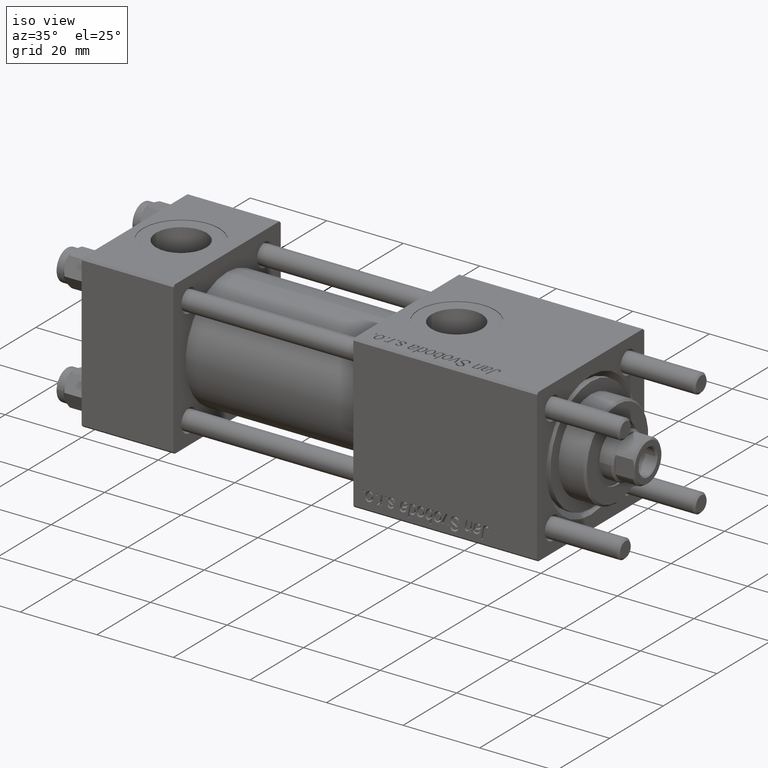
[diagram: clean part render]
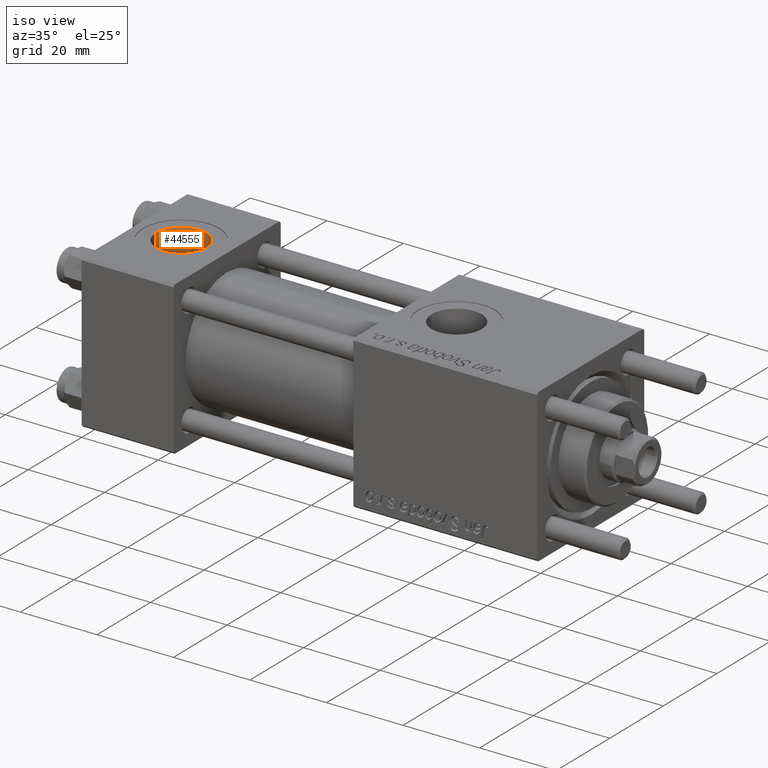
[diagram: same view with one face highlighted and labeled with its STEP entity id]
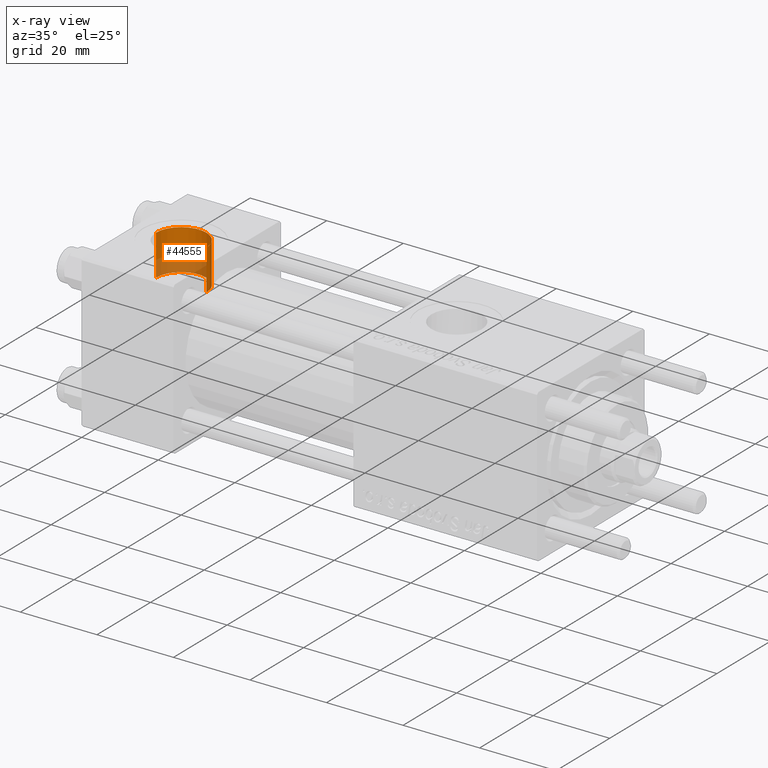
[diagram: x-ray of the same camera — body ghosted, the highlighted face saturated]
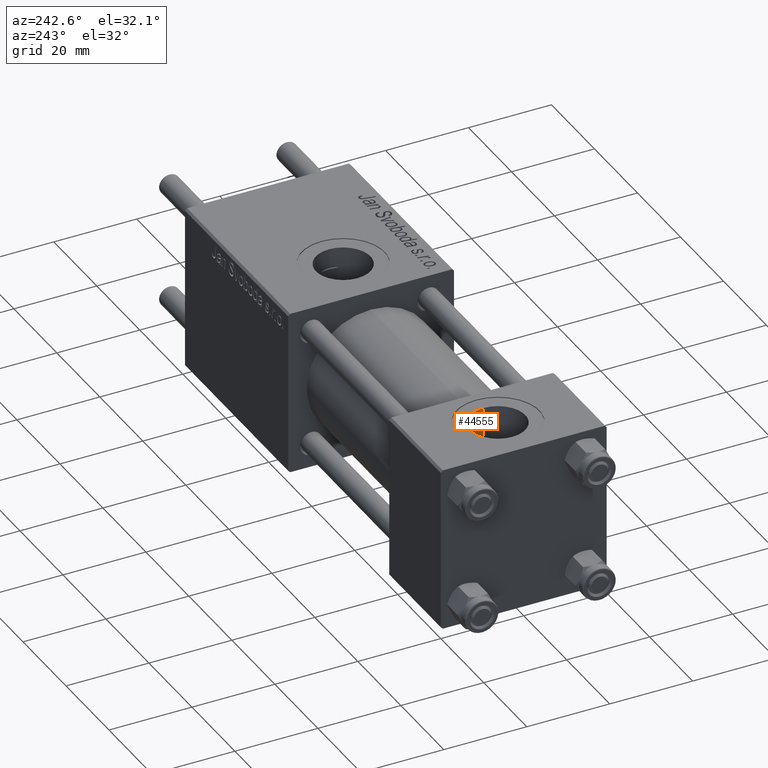
[diagram: same view with one face highlighted and labeled with its STEP entity id]
A machine part, iso view. The second image highlights one B-rep face of the part: STEP entity #44555.
The next image is the same camera in x-ray: the body ghosted, the highlighted face saturated — about 34% of this face is hidden behind the body in this view.
A second angle (auxiliary view) of the same face is appended — the face is thin or edge-on in the first view.
In plain terms, the highlighted cylindrical surface (edge-blend (fillet) strip) has radius 6.58 mm, axis along (0, 0, 1).
Its self-contained STEP definition (entity closure, byte-faithful):
#1028 = AXIS2_PLACEMENT_3D ( 'NONE', #52644, #31447, #31721 ) ;
#2093 = VECTOR ( 'NONE', #14751, 1000.000000000000000 ) ;
#5621 = VERTEX_POINT ( 'NONE', #39962 ) ;
#6402 = ORIENTED_EDGE ( 'NONE', *, *, #12890, .T. ) ;
#6999 = EDGE_CURVE ( 'NONE', #43525, #35718, #35832, .T. ) ;
#7567 = VECTOR ( 'NONE', #41560, 1000.000000000000000 ) ;
#8988 = DIRECTION ( 'NONE',  ( -0.000000000000000000, -0.000000000000000000, 1.000000000000000000 ) ) ;
#10835 = ORIENTED_EDGE ( 'NONE', *, *, #6999, .T. ) ;
#11326 = CARTESIAN_POINT ( 'NONE',  ( 18.57999999999999829, 1.540743955509788682E-30, 19.79999999999999716 ) ) ;
#12890 = EDGE_CURVE ( 'NONE', #35718, #15567, #20344, .T. ) ;
#14153 = DIRECTION ( 'NONE',  ( 1.000000000000000000, 0.000000000000000000, 0.000000000000000000 ) ) ;
#14626 = EDGE_CURVE ( 'NONE', #15567, #5621, #48669, .T. ) ;
#14751 = DIRECTION ( 'NONE',  ( -0.000000000000000000, -0.000000000000000000, 1.000000000000000000 ) ) ;
#15567 = VERTEX_POINT ( 'NONE', #11326 ) ;
#16789 = ORIENTED_EDGE ( 'NONE', *, *, #18930, .F. ) ;
#18930 = EDGE_CURVE ( 'NONE', #43525, #5621, #27115, .T. ) ;
#19054 = CARTESIAN_POINT ( 'NONE',  ( 5.420000000000000817, 8.058175938389596335E-16, 9.199999999999995737 ) ) ;
#19193 = CARTESIAN_POINT ( 'NONE',  ( 18.57999999999999829, 1.540743955509788682E-30, 9.165987261146492315 ) ) ;
#20344 = LINE ( 'NONE', #45874, #7567 ) ;
#26217 = CYLINDRICAL_SURFACE ( 'NONE', #44784, 6.579999999999999183 ) ;
#27115 = LINE ( 'NONE', #19054, #2093 ) ;
#27311 = EDGE_LOOP ( 'NONE', ( #16789, #10835, #6402, #38513 ) ) ;
#31447 = DIRECTION ( 'NONE',  ( 0.000000000000000000, 0.000000000000000000, 1.000000000000000000 ) ) ;
#31721 = DIRECTION ( 'NONE',  ( 1.000000000000000000, 0.000000000000000000, 0.000000000000000000 ) ) ;
#33942 = CARTESIAN_POINT ( 'NONE',  ( 12.00000000000000000, 1.540743955509788682E-30, 9.165987261146492315 ) ) ;
#35718 = VERTEX_POINT ( 'NONE', #19193 ) ;
#35832 = CIRCLE ( 'NONE', #46799, 6.579999999999999183 ) ;
#38513 = ORIENTED_EDGE ( 'NONE', *, *, #14626, .T. ) ;
#38557 = CARTESIAN_POINT ( 'NONE',  ( 5.420000000000000817, 8.058175938389596335E-16, 9.165987261146492315 ) ) ;
#39641 = DIRECTION ( 'NONE',  ( 1.000000000000000000, 0.000000000000000000, 0.000000000000000000 ) ) ;
#39962 = CARTESIAN_POINT ( 'NONE',  ( 5.420000000000000817, 8.058175938389596335E-16, 19.79999999999999716 ) ) ;
#41560 = DIRECTION ( 'NONE',  ( -0.000000000000000000, -0.000000000000000000, 1.000000000000000000 ) ) ;
#43525 = VERTEX_POINT ( 'NONE', #38557 ) ;
#43688 = CARTESIAN_POINT ( 'NONE',  ( 12.00000000000000000, 1.540743955509788682E-30, 9.199999999999995737 ) ) ;
#44555 = ADVANCED_FACE ( 'NONE', ( #48290 ), #26217, .F. ) ;
#44784 = AXIS2_PLACEMENT_3D ( 'NONE', #43688, #8988, #14153 ) ;
#45874 = CARTESIAN_POINT ( 'NONE',  ( 18.57999999999999829, 1.540743955509788682E-30, 9.199999999999995737 ) ) ;
#46799 = AXIS2_PLACEMENT_3D ( 'NONE', #33942, #47975, #39641 ) ;
#47975 = DIRECTION ( 'NONE',  ( -0.000000000000000000, -0.000000000000000000, -1.000000000000000000 ) ) ;
#48290 = FACE_OUTER_BOUND ( 'NONE', #27311, .T. ) ;
#48669 = CIRCLE ( 'NONE', #1028, 6.579999999999999183 ) ;
#52644 = CARTESIAN_POINT ( 'NONE',  ( 12.00000000000000000, 1.540743955509788682E-30, 19.79999999999999716 ) ) ;